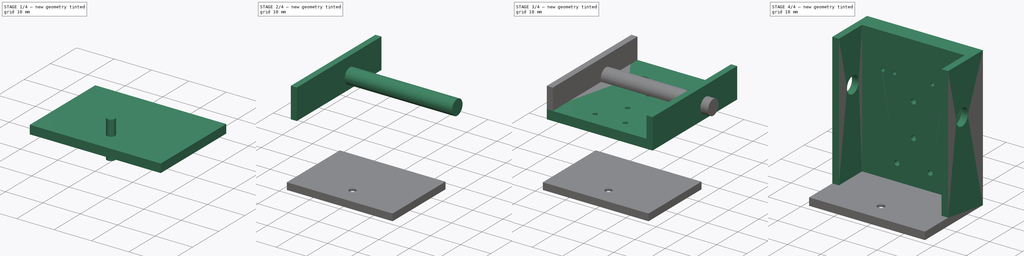
[diagram: build sequence overview — one tinted view per stage of 4, left to right]
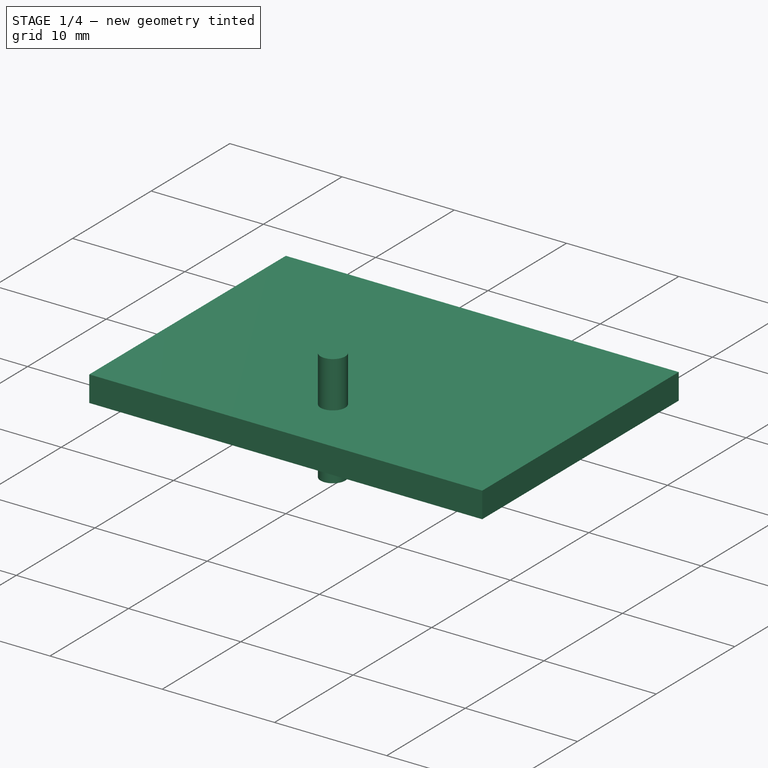
[diagram: stage 1 of 4 — iso view after this stage's code; geometry added in this stage tinted green]
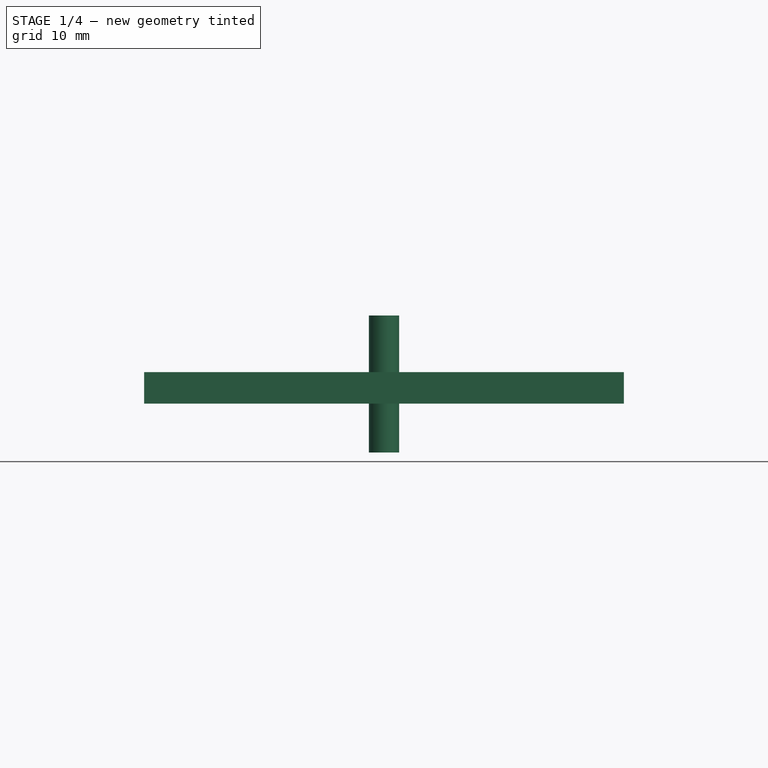
[diagram: stage 1 of 4 — front view after this stage's code; geometry added in this stage tinted green]
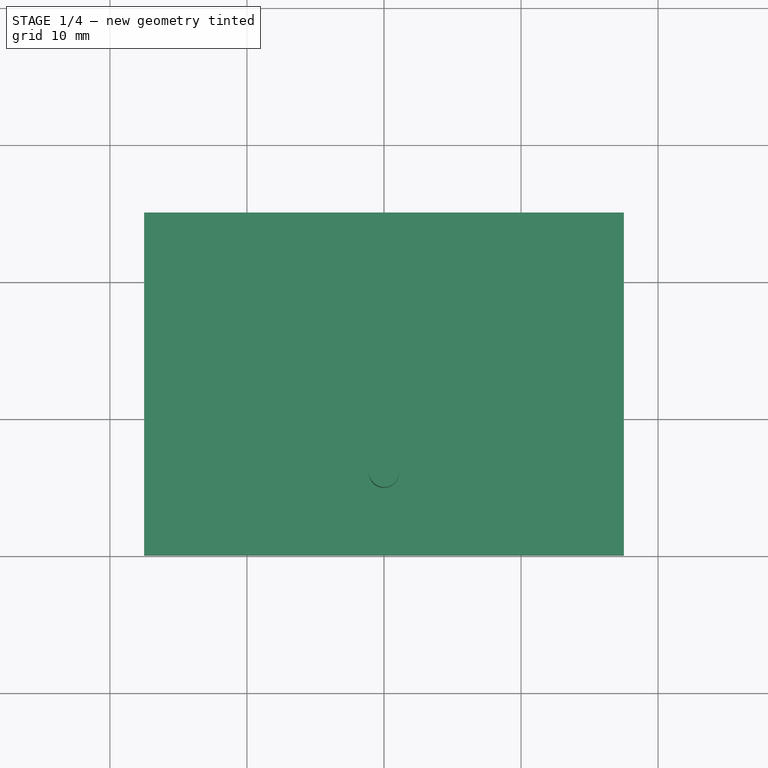
[diagram: stage 1 of 4 — top view after this stage's code; geometry added in this stage tinted green]
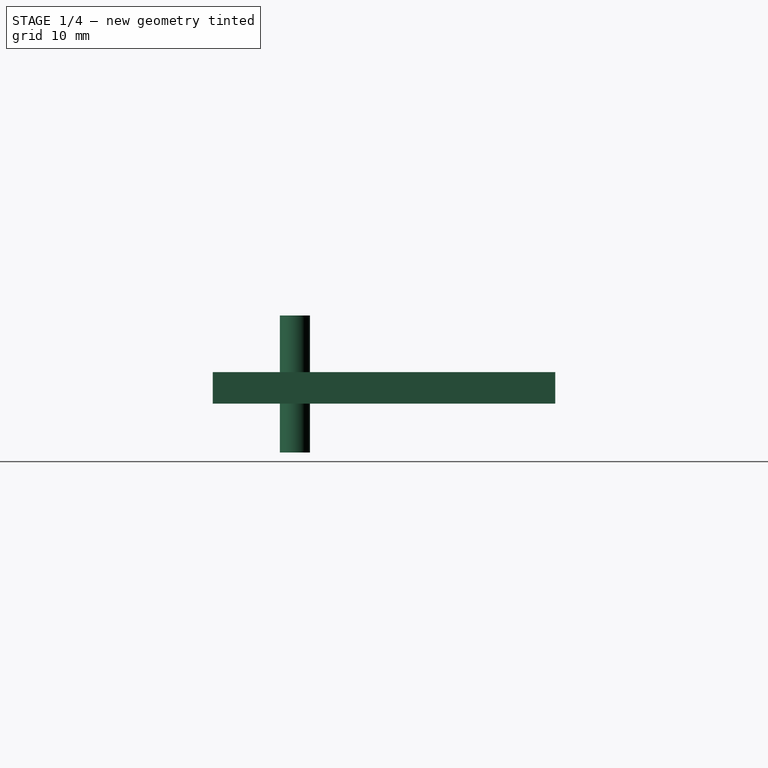
[diagram: stage 1 of 4 — right view after this stage's code; geometry added in this stage tinted green]
FCSTD DOCUMENT  (FreeCAD 0.18R16131 (Git))
Label: Franky con servo
License: Public Domain
LicenseURL: http://en.wikipedia.org/wiki/Public_domain
objects: Part::Feature×9, Sketcher::SketchObject×3, PartDesign::Pad×3, PartDesign::Body×3, Part::MultiFuse×3, Part::Cut×3, App::DocumentObjectGroup×3, Part::Box×2, Part::Cylinder×2, Part::Part2DObjectPython×1, Part::Extrusion×1
note: 33 computed .brp shape members not serialized (recipe doc carries the construction recipe); baked Part::Feature solids carry a one-line shape summary decoded from their .brp

FEATURE [Part::Part2DObjectPython] Rectangle  # Draft 2D object (typed FeaturePython)
  ChamferSize = 0
  Columns = 1
  FilletRadius = 0
  Height = 25
  Length = 35
  MakeFace = true
  Placement = pos=(-17.5,5,-18.1329) rot=(1,0,0;3.14159rad)
  Rows = 1
FEATURE [Part::Cylinder] Cylinder001  label="Cilindro001"
  Angle = 360
  AttacherType = Attacher::AttachEngine3D
  Height = 10
  Placement = pos=(0,-14,-24) rot=(0,0,1;0rad)
  Radius = 1.1
FEATURE [Part::Extrusion] Extrude
  Base = -> Rectangle
  Dir = (0,-2e-16,-1)
  DirMode = 2
  FaceMakerClass = Part::FaceMakerBullseye
  LengthFwd = 2.3
  LengthRev = 0
  Solid = false
  Symmetric = false
FEATURE [Sketcher::SketchObject] Sketch002  label="Boceto de leva servo"
  AttachmentOffset = pos=(0,-14,-20.9) rot=(0,0,1;0rad)
  MapMode = 5
  Placement = pos=(0,-14,-20.9) rot=(0,0,1;0rad)
  Support = -> [XY_Plane004]
  sketch-geometry (6):
    g0: ArcOfCircle CenterX=0 CenterY=0 CenterZ=0 NormalX=0 NormalY=0 NormalZ=1 AngleXU=0 Radius=3.6 StartAngle=2.46192 EndAngle=6.96286
    g1: ArcOfCircle CenterX=0 CenterY=14 CenterZ=0 NormalX=0 NormalY=0 NormalZ=1 AngleXU=0 Radius=2 StartAngle=0.0676647 EndAngle=3.07393
    g2: LineSegment [constr] StartX=-2.8 StartY=2.26274 StartZ=0 EndX=2.8 EndY=2.26274 EndZ=0
    g3: LineSegment StartX=2.8 StartY=2.26274 StartZ=0 EndX=1.99542 EndY=14.1352 EndZ=0
    g4: LineSegment [constr] StartX=0 StartY=16 StartZ=0 EndX=0 EndY=0 EndZ=0
    g5: LineSegment StartX=-2.8 StartY=2.26274 StartZ=0 EndX=-1.99542 EndY=14.1352 EndZ=0
  constraints (16):
    c: Coincident(g3,g2)
    c: Vertical(g4)
    c: Coincident(g5,g2)
    c: DistanceX(g2,g2) = 5.6
    c: DistanceY(g4,g4) = 16
    c: Radius(g0) = 3.6
    c: Radius(g1) = 2
    c: Coincident(g0,g2)
    c: Coincident(g0,g4)
    c: Coincident(g0,g-1)
    c: Coincident(g0,g2)
    c: Tangent(g1,g3) = -1.5708
    c: Horizontal(g2)
    c: PointOnObject(g1,g4)
    c: Tangent(g1,g5) = 1.5708
    c: PointOnObject(g4,g1)
FEATURE [PartDesign::Pad] Pad002  label="Extrusion leva servo"
  Length = 2
  Length2 = 100
  Profile = -> Sketch002
  Refine = true
  Type = 0
FEATURE [Part::Cut] Cut001
  Base = -> Extrude
  Refine = true
  Tool = -> Pad002
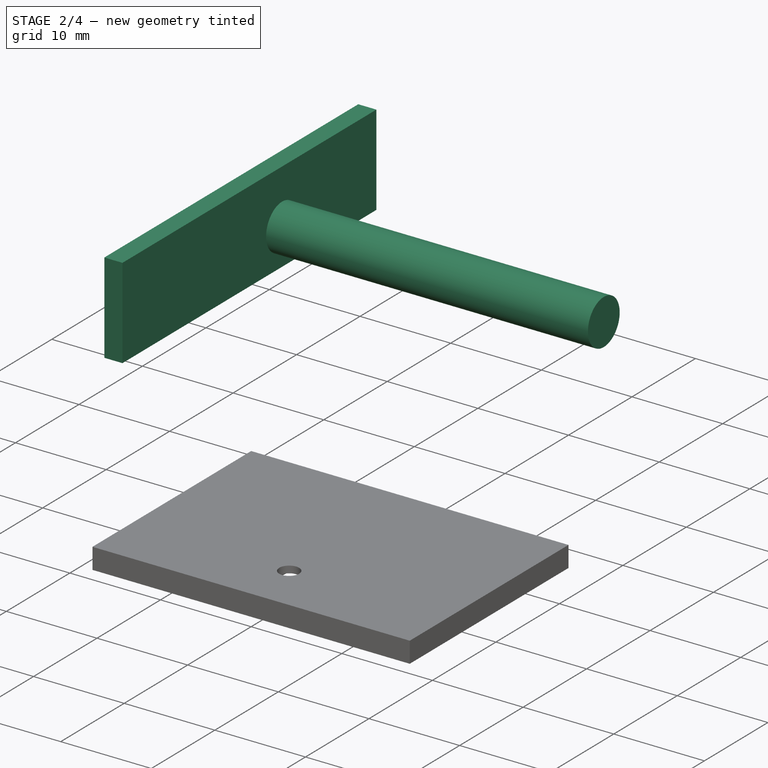
[diagram: stage 2 of 4 — iso view after this stage's code; geometry added in this stage tinted green]
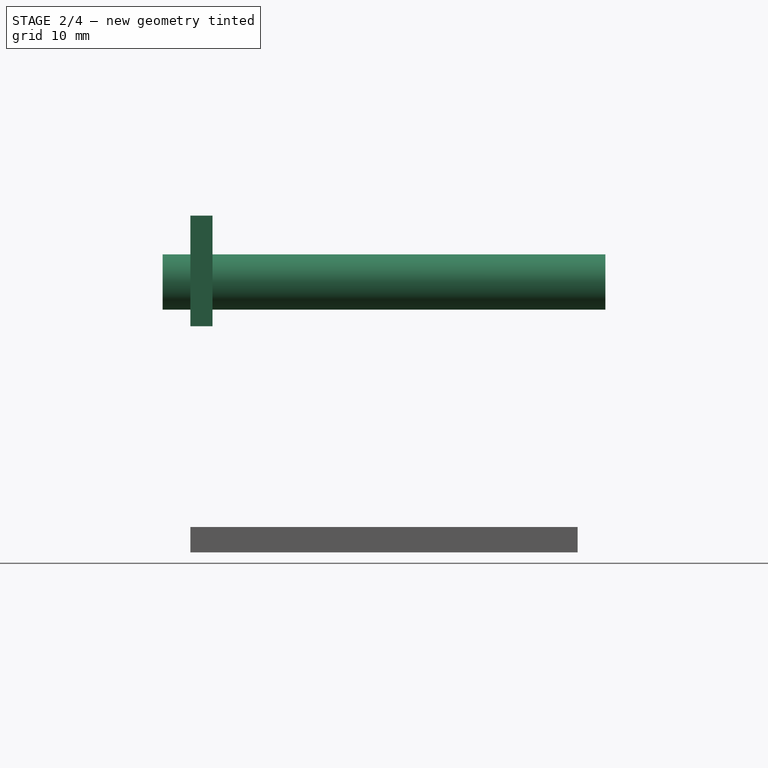
[diagram: stage 2 of 4 — front view after this stage's code; geometry added in this stage tinted green]
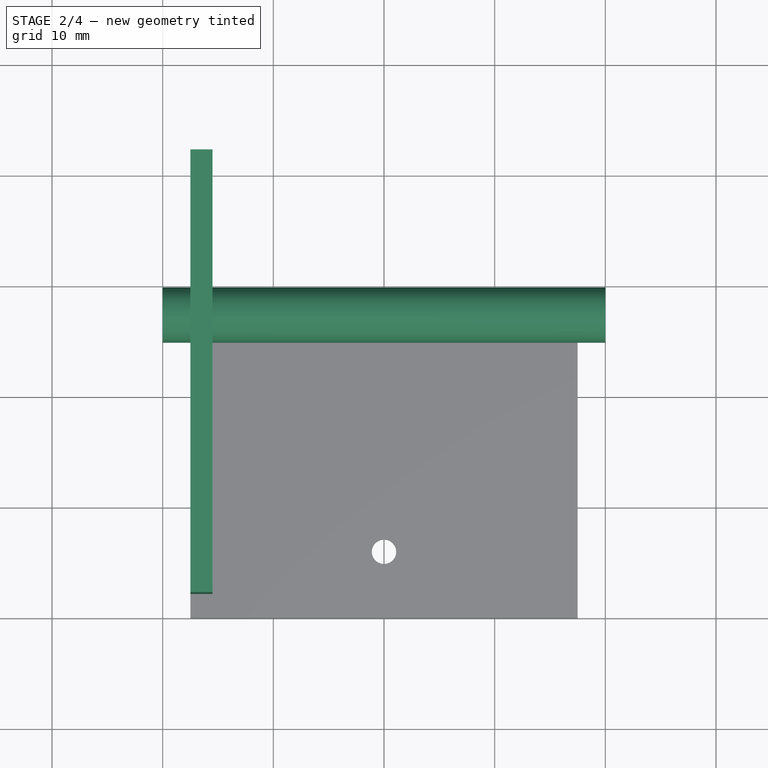
[diagram: stage 2 of 4 — top view after this stage's code; geometry added in this stage tinted green]
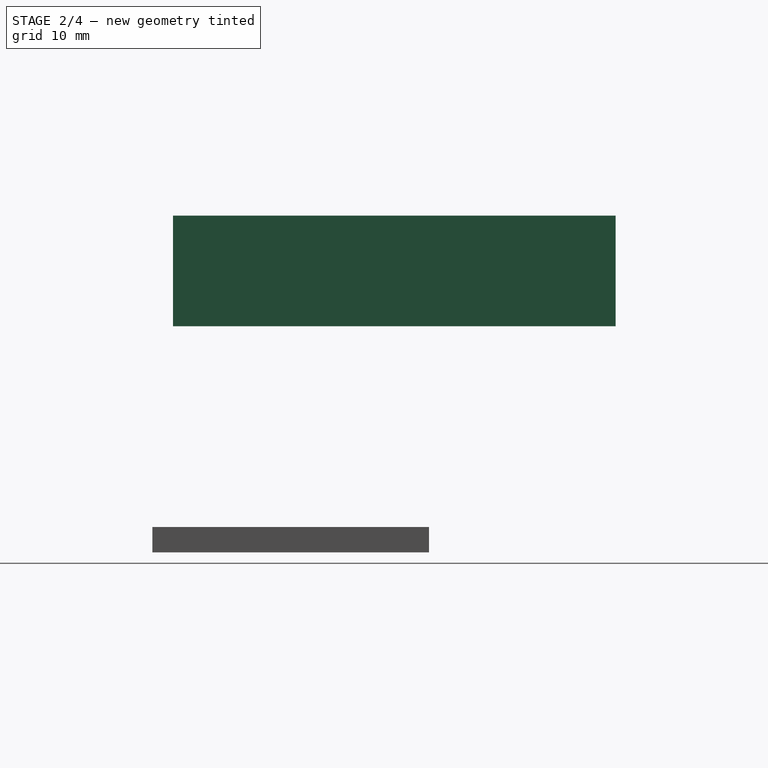
[diagram: stage 2 of 4 — right view after this stage's code; geometry added in this stage tinted green]
FEATURE [Part::Box] Box001  label="Cubo001"
  AttacherType = Attacher::AttachEngine3D
  Height = 10
  Length = 2
  Placement = pos=(-17.5,-18.13,2.1e-15) rot=(0,0,1;0rad)
  Width = 40
FEATURE [Part::Cylinder] Cylinder  label="Cilindro"
  Angle = 360
  AttacherType = Attacher::AttachEngine3D
  Height = 40
  Placement = pos=(-20,7,4) rot=(0,1,0;1.5708rad)
  Radius = 2.5
FEATURE [Part::Cut] Cut002  label="Base Franky"
  Base = -> Cut001
  Refine = true
  Tool = -> Cylinder001
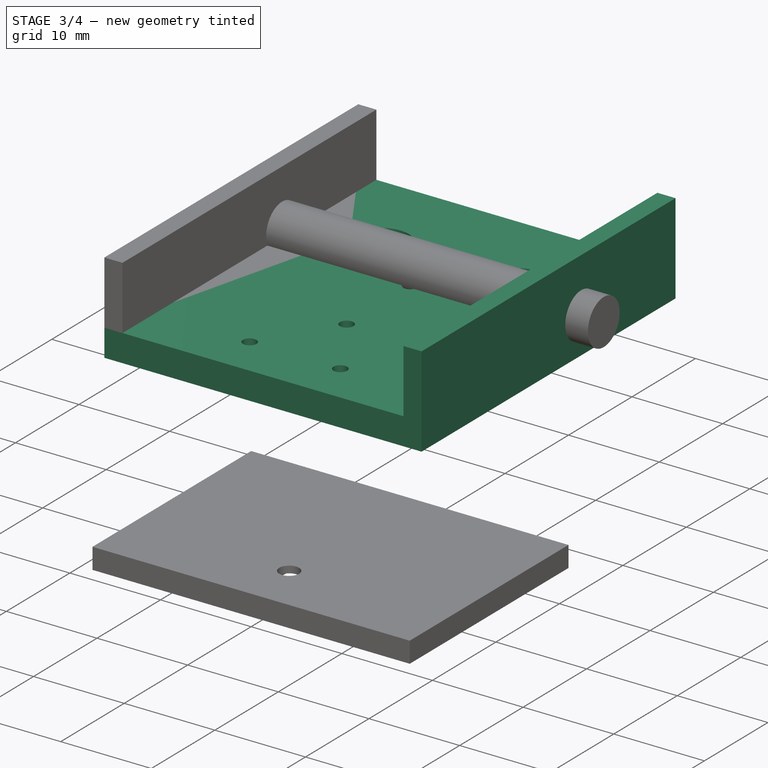
[diagram: stage 3 of 4 — iso view after this stage's code; geometry added in this stage tinted green]
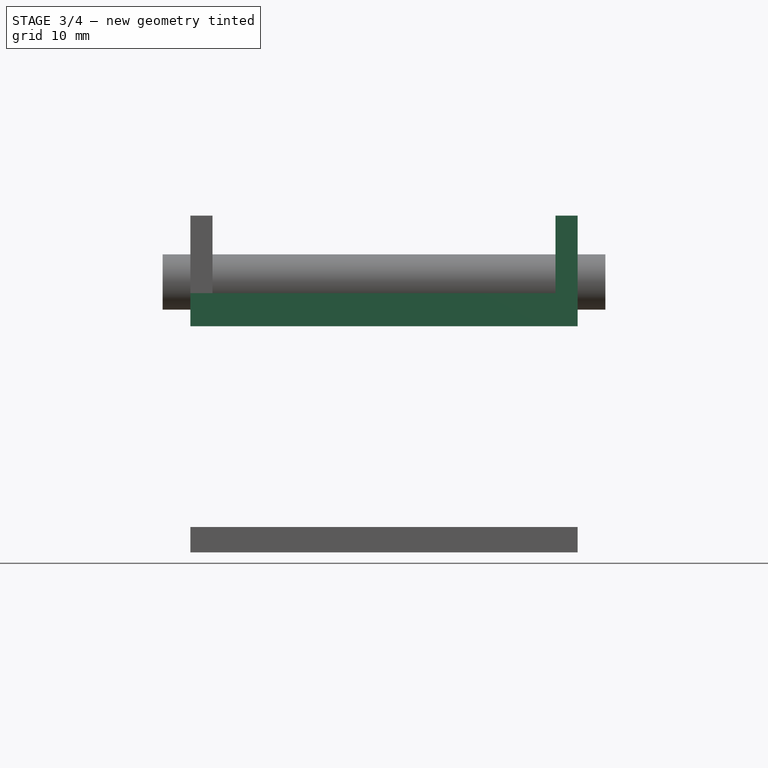
[diagram: stage 3 of 4 — front view after this stage's code; geometry added in this stage tinted green]
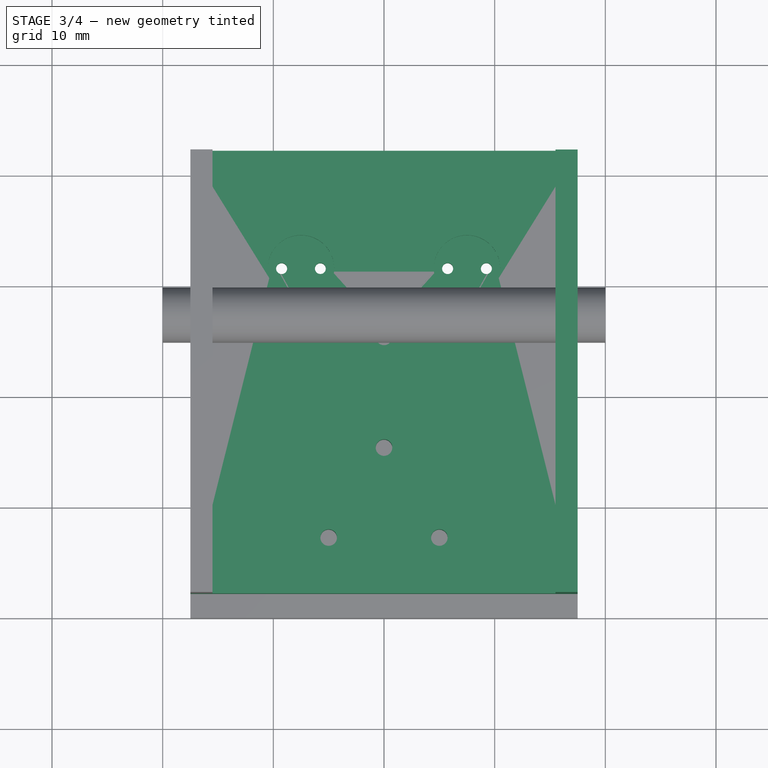
[diagram: stage 3 of 4 — top view after this stage's code; geometry added in this stage tinted green]
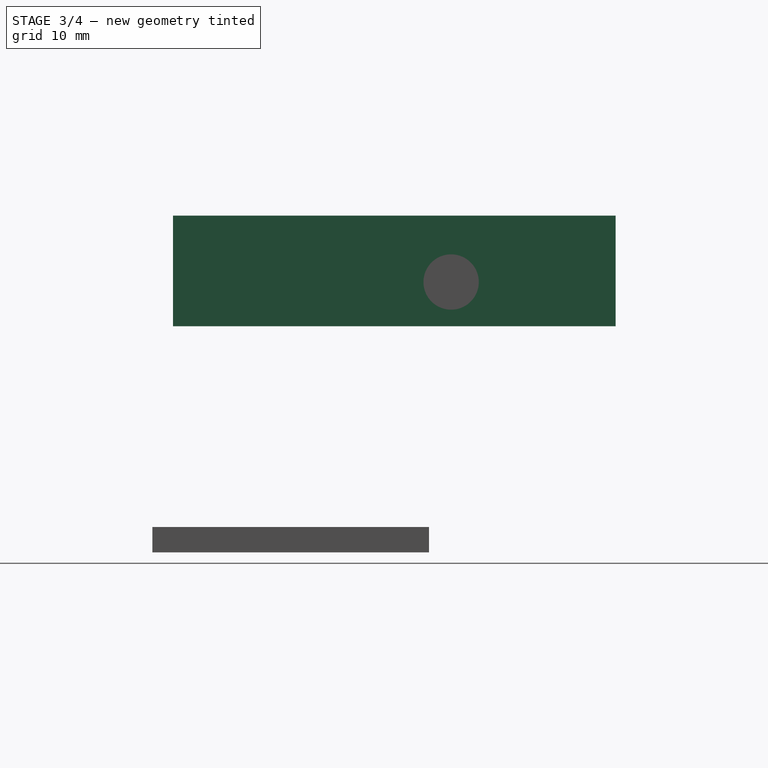
[diagram: stage 3 of 4 — right view after this stage's code; geometry added in this stage tinted green]
FEATURE [Sketcher::SketchObject] Sketch
  MapMode = 5
  Support = -> [XY_Plane]
  sketch-geometry (10):
    g0: Circle CenterX=-7.5 CenterY=11.2461 CenterZ=0 NormalX=0 NormalY=0 NormalZ=1 AngleXU=0 Radius=3
    g1: Circle CenterX=7.5 CenterY=11.2461 CenterZ=0 NormalX=0 NormalY=0 NormalZ=1 AngleXU=0 Radius=3
    g2: Circle CenterX=0 CenterY=5.04928 CenterZ=0 NormalX=0 NormalY=0 NormalZ=1 AngleXU=0 Radius=0.75
    g3: Circle CenterX=0 CenterY=-4.95072 CenterZ=0 NormalX=0 NormalY=0 NormalZ=1 AngleXU=0 Radius=0.75
    g4: Circle CenterX=-5 CenterY=-13.0826 CenterZ=0 NormalX=0 NormalY=0 NormalZ=1 AngleXU=0 Radius=0.75
    g5: Circle CenterX=5 CenterY=-13.0826 CenterZ=0 NormalX=0 NormalY=0 NormalZ=1 AngleXU=0 Radius=0.75
    g6: LineSegment StartX=-17.5 StartY=21.8671 StartZ=0 EndX=17.5 EndY=21.8671 EndZ=0
    g7: LineSegment StartX=17.5 StartY=21.8671 StartZ=0 EndX=17.5 EndY=-18.1329 EndZ=0
    g8: LineSegment StartX=17.5 StartY=-18.1329 StartZ=0 EndX=-17.5 EndY=-18.1329 EndZ=0
    g9: LineSegment StartX=-17.5 StartY=-18.1329 StartZ=0 EndX=-17.5 EndY=21.8671 EndZ=0
  constraints (23):
    c: Radius(g1) = 3
    c: Radius(g0) = 3
    c: Symmetric(g0,g1,g-2)
    c: DistanceX(g0,g1) = 15
    c: PointOnObject(g2,g-2)
    c: Radius(g2) = 0.75
    c: Radius(g3) = 0.75
    c: DistanceY(g3,g2) = 10
    c: Symmetric(g5,g4,g-2)
    c: Radius(g5) = 0.75
    c: Equal(g5,g4)
    c: DistanceX(g4,g5) = 10
    c: Coincident(g6,g7)
    c: Coincident(g7,g8)
    c: Coincident(g8,g9)
    c: Coincident(g9,g6)
    c: Horizontal(g8)
    c: Vertical(g7)
    c: Vertical(g9)
    c: Symmetric(g6,g6,g-2)
    c: DistanceX(g6,g6) = 35
    c: DistanceY(g7,g6) = 40
    c: PointOnObject(g3,g-2)
FEATURE [PartDesign::Pad] Pad
  Length = 3
  Length2 = 100
  Profile = -> Sketch
  Refine = true
  Type = 0
FEATURE [PartDesign::Body] Body
  Group = -> [Sketch,Pad]
  Origin = -> Origin
  Placement = pos=(0,0,2) rot=(0,0,1;0rad)
  Tip = -> Pad
FEATURE [Sketcher::SketchObject] Sketch001
  MapMode = 5
  Support = -> [XY_Plane003]
  sketch-geometry (12):
    g0: Circle CenterX=-5.75 CenterY=11.2461 CenterZ=0 NormalX=0 NormalY=0 NormalZ=1 AngleXU=0 Radius=0.492907
    g1: Circle CenterX=-9.25 CenterY=11.2461 CenterZ=0 NormalX=0 NormalY=0 NormalZ=1 AngleXU=0 Radius=0.5
    g2: Circle CenterX=0 CenterY=5.04928 CenterZ=0 NormalX=0 NormalY=0 NormalZ=1 AngleXU=0 Radius=0.750705
    g3: Circle CenterX=5.75 CenterY=11.2461 CenterZ=0 NormalX=0 NormalY=0 NormalZ=1 AngleXU=0 Radius=0.5
    g4: Circle CenterX=9.25 CenterY=11.2461 CenterZ=0 NormalX=0 NormalY=0 NormalZ=1 AngleXU=0 Radius=0.5
    g5: Circle CenterX=0 CenterY=-4.95072 CenterZ=0 NormalX=0 NormalY=0 NormalZ=1 AngleXU=0 Radius=0.75
    g6: Circle CenterX=5 CenterY=-13.0826 CenterZ=0 NormalX=0 NormalY=0 NormalZ=1 AngleXU=0 Radius=0.75
    g7: Circle CenterX=-5 CenterY=-13.0826 CenterZ=0 NormalX=0 NormalY=0 NormalZ=1 AngleXU=0 Radius=0.75
    g8: LineSegment StartX=-17.5 StartY=21.8671 StartZ=0 EndX=17.5 EndY=21.8671 EndZ=0
    g9: LineSegment StartX=17.5 StartY=21.8671 StartZ=0 EndX=17.5 EndY=-18.1329 EndZ=0
    g10: LineSegment StartX=17.5 StartY=-18.1329 StartZ=0 EndX=-17.5 EndY=-18.1329 EndZ=0
    g11: LineSegment StartX=-17.5 StartY=-18.1329 StartZ=0 EndX=-17.5 EndY=21.8671 EndZ=0
  constraints (8):
    c: Coincident(g8,g9)
    c: Coincident(g9,g10)
    c: Coincident(g10,g11)
    c: Coincident(g11,g8)
    c: Horizontal(g8)
    c: Horizontal(g10)
    c: Vertical(g9)
    c: Vertical(g11)
FEATURE [PartDesign::Pad] Pad001
  Length = 2
  Length2 = 100
  Profile = -> Sketch001
  Refine = true
  Type = 0
FEATURE [Part::Box] Box  label="Cubo"
  AttacherType = Attacher::AttachEngine3D
  Height = 10
  Length = 2
  Placement = pos=(15.5,-18.1329,2.1e-15) rot=(0,0,1;0rad)
  Width = 40
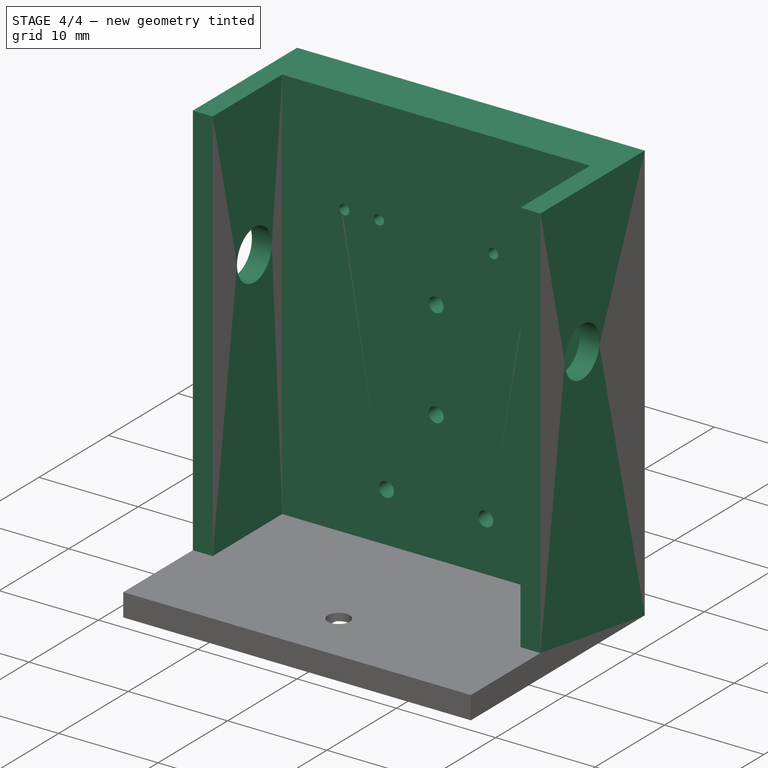
[diagram: stage 4 of 4 — iso view after this stage's code; geometry added in this stage tinted green]
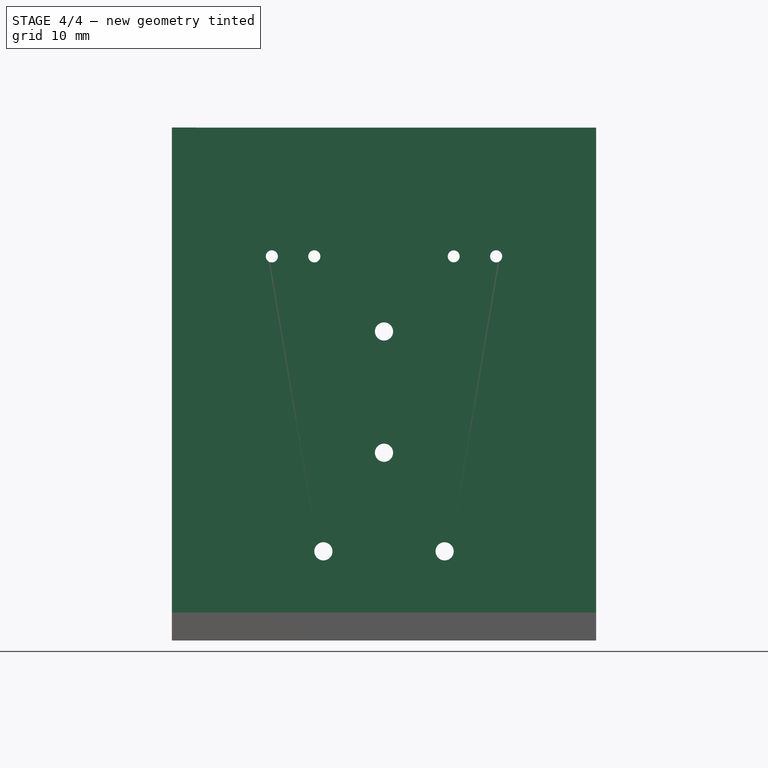
[diagram: stage 4 of 4 — front view after this stage's code; geometry added in this stage tinted green]
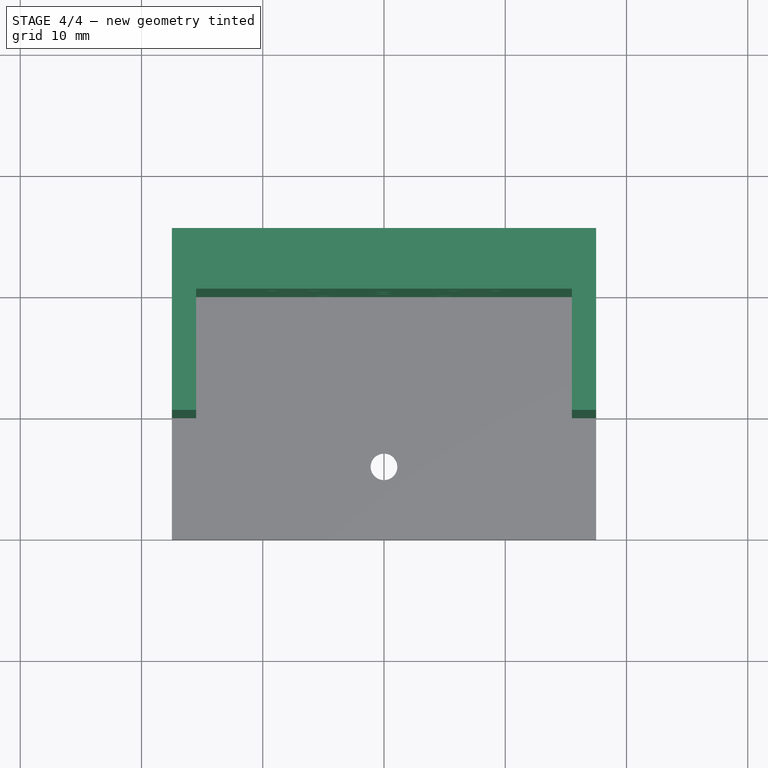
[diagram: stage 4 of 4 — top view after this stage's code; geometry added in this stage tinted green]
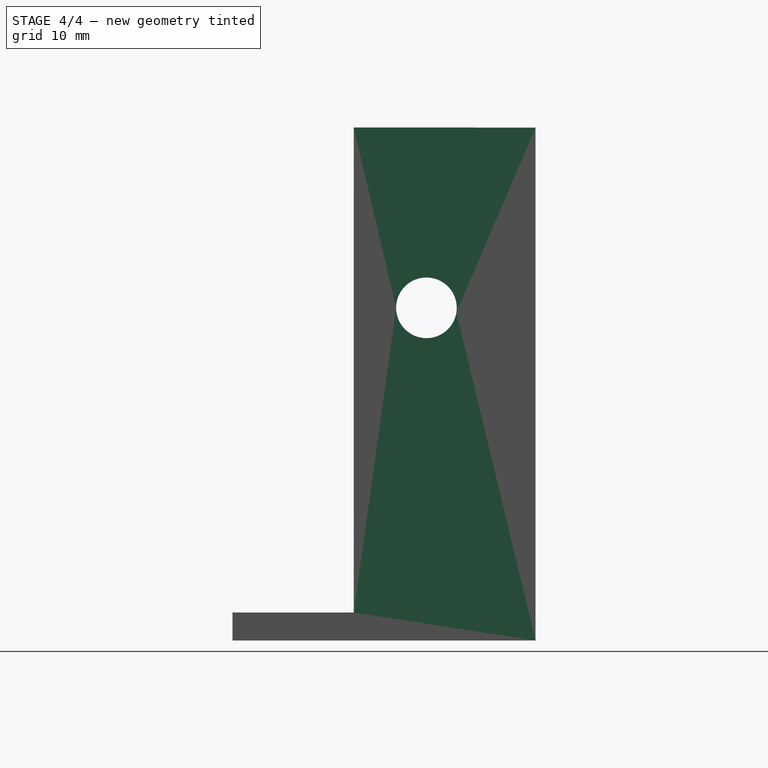
[diagram: stage 4 of 4 — right view after this stage's code; geometry added in this stage tinted green]
FEATURE [PartDesign::Body] Body003
  Group = -> [Sketch001,Pad001]
  Origin = -> Origin003
  Tip = -> Pad001
FEATURE [Part::MultiFuse] Fusion
  Placement = pos=(0,0,0) rot=(0,1,0;3.14159rad)
  Refine = true
  Shapes = -> [Body,Body003]
FEATURE [Part::MultiFuse] Fusion001
  Refine = true
  Shapes = -> [Fusion,Box,Box001]
FEATURE [Part::Cut] Cut  label="Franky"
  Base = -> Fusion001
  Placement = pos=(0,0,0) rot=(1,0,0;1.5708rad)
  Refine = true
  Tool = -> Cylinder
FEATURE [PartDesign::Body] Body004  label="Leva servo"
  Group = -> [Sketch002,Pad002]
  Origin = -> Origin004
  Placement = pos=(2.432e-05,1e-16,0.39) rot=(0,0,1;0rad)
  Tip = -> Pad002
FEATURE [Part::MultiFuse] Fusion002
  Refine = true
  Shapes = -> [Cut,Cut002]
FEATURE [App::DocumentObjectGroup] Group  label="SRC"
  Group = -> [Body004,Fusion002]
FEATURE [Part::Feature] Fusion002001  label="Franky con servo"
  shape: bbox 35 x 25 x 42.3 mm, 37 faces (baked)
FEATURE [Part::Feature] Body002001  label="Led rojo"
  Placement = pos=(7.6,2,11.3) rot=(0,0,1;0rad)
  shape: bbox 5.425 x 8.65 x 5.85 mm, 7 faces (baked)
FEATURE [Part::Feature] Cut016004  label="Cuerpo Resistencia"
  Placement = pos=(1.5,11,-5) rot=(1,0,0;1.5708rad)
  shape: bbox 2.3 x 2.3 x 8.02 mm, 9 faces (baked)
FEATURE [Part::Feature] Fusion014001001  label="Anillos resistencia"
  Placement = pos=(1.5,11,-5) rot=(1,0,0;1.5708rad)
  shape: bbox 2.233 x 2.233 x 3.032 mm, 16 faces, 4 solids (baked)
FEATURE [App::DocumentObjectGroup] Group012  label="Resistencia"
  Group = -> [Cut016004,Fusion014001001]
FEATURE [Part::Feature] Body002002  label="Led rojo001"
  Placement = pos=(-7.4,2,11.3) rot=(0,0,1;0rad)
  shape: bbox 5.425 x 8.65 x 5.85 mm, 7 faces (baked)
FEATURE [Part::Feature] Body002003  label="Led Azul"
  Placement = pos=(-14.4,-4,7.3) rot=(0,0,1;1.5708rad)
  shape: bbox 8.65 x 5.425 x 5.85 mm, 7 faces (baked)
FEATURE [Part::Feature] Body002004  label="Led Azul001"
  Placement = pos=(14.6,-4,7.3) rot=(0,0,1;-1.5708rad)
  shape: bbox 8.65 x 5.425 x 5.85 mm, 7 faces (baked)
FEATURE [App::DocumentObjectGroup] Group013  label="Led"
  Group = -> [Body002002,Body002003,Body002004,Body002001]
FEATURE [Part::Feature] Cut016005  label="Cuerpo Resistencia001"
  Placement = pos=(5,7,-18) rot=(0,0,1;1.5708rad)
  shape: bbox 8.02 x 2.3 x 2.3 mm, 9 faces (baked)
FEATURE [Part::Feature] Fusion014001002  label="Anillos resistencia001"
  Placement = pos=(5,7,-18) rot=(0,0,1;1.5708rad)
  shape: bbox 3.032 x 2.233 x 2.233 mm, 16 faces, 4 solids (baked)
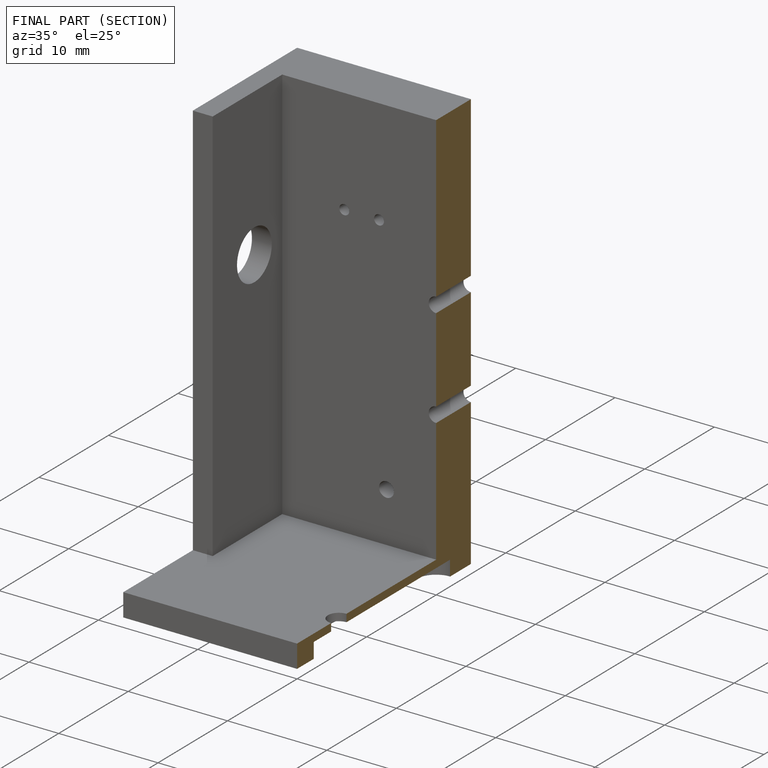
[diagram: finished part — half-section view (interior)]
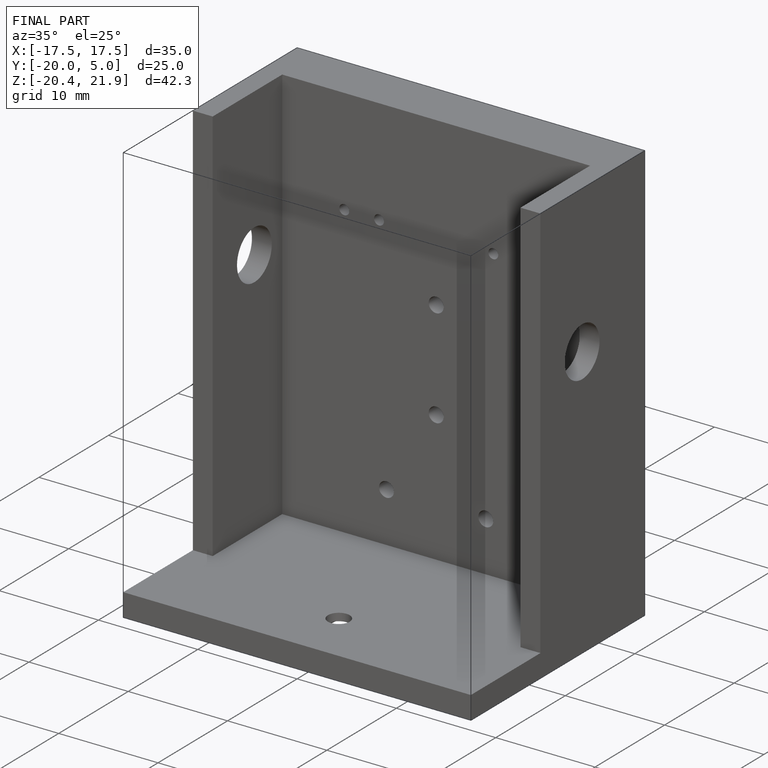
[diagram: finished part — iso view with bounding-box wireframe]
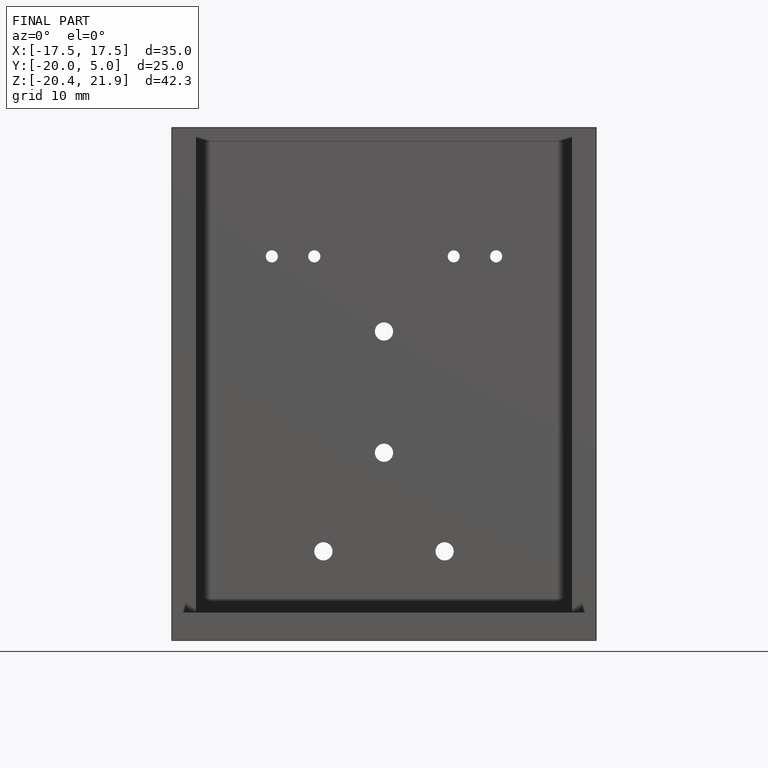
[diagram: finished part — front view with bounding-box wireframe]
